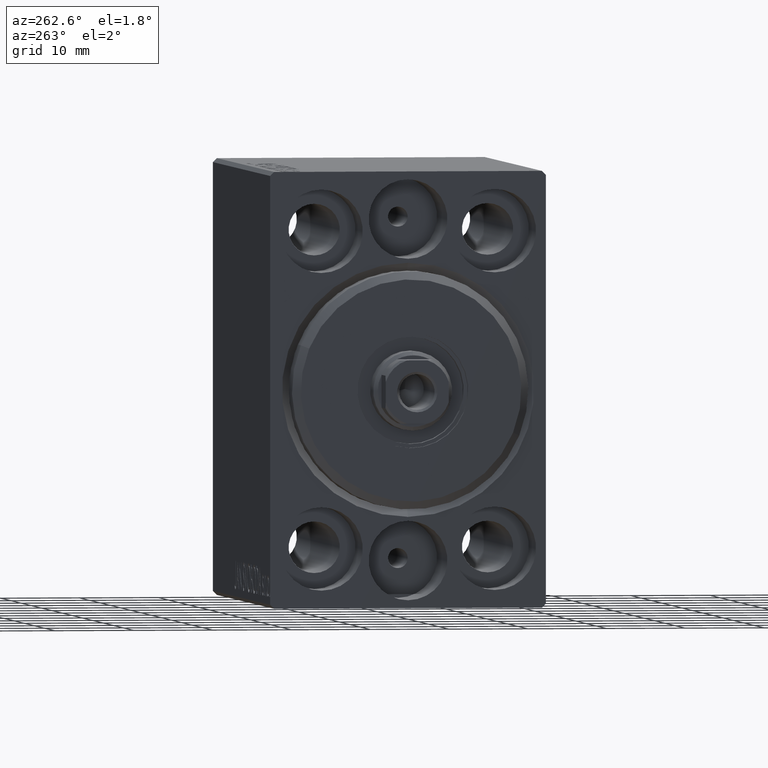
[diagram: clean part render]
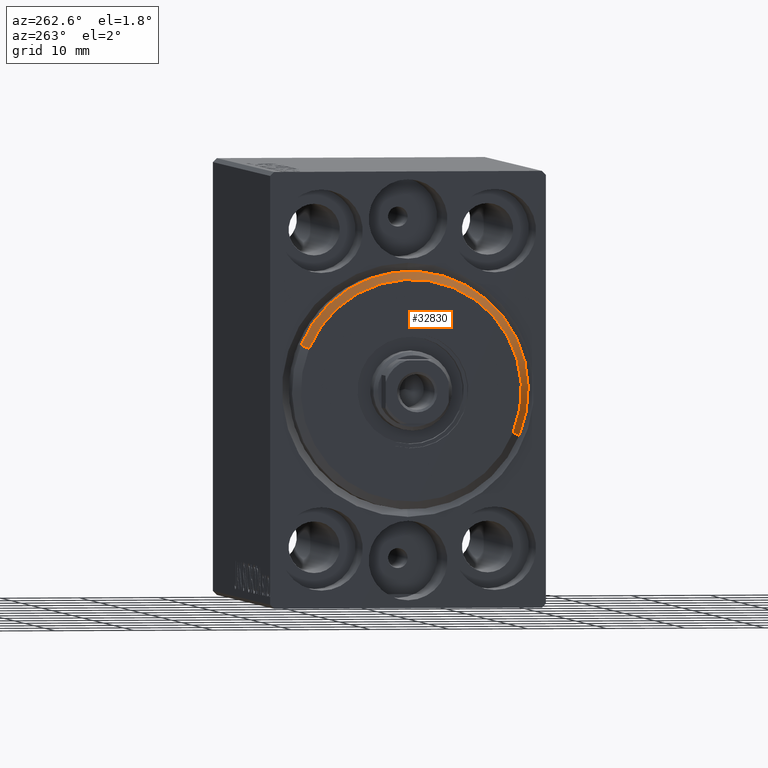
[diagram: same view with one face highlighted and labeled with its STEP entity id]
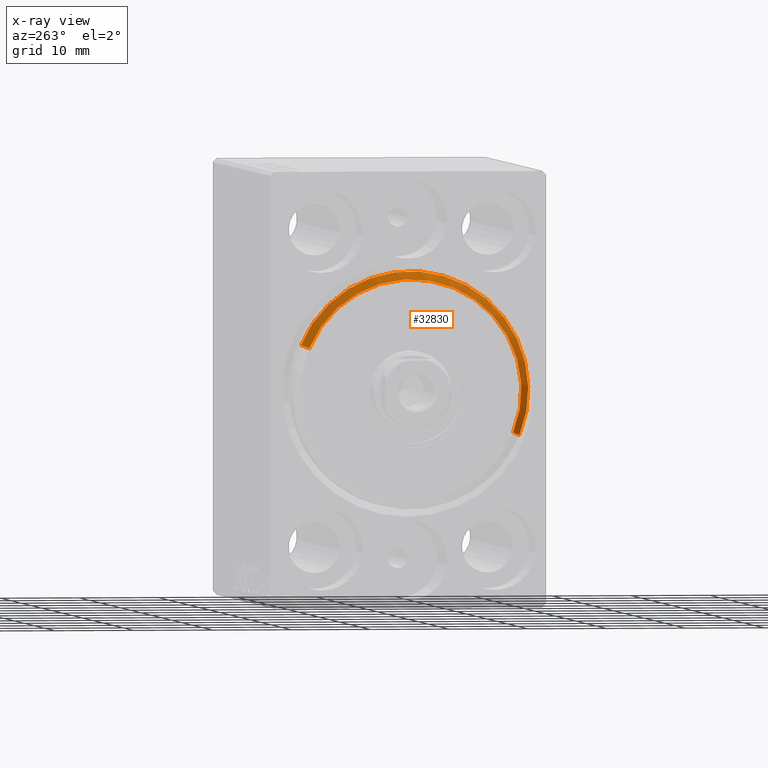
[diagram: x-ray of the same camera — body ghosted, the highlighted face saturated]
A machine part, auxiliary view. The second image highlights one B-rep face of the part: STEP entity #32830.
The next image is the same camera in x-ray: the body ghosted, the highlighted face saturated — about 0% of this face is hidden behind the body in this view.
In plain terms, the highlighted conical surface has half-angle 45 deg.
Its self-contained STEP definition (entity closure, byte-faithful):
#1806 = ORIENTED_EDGE ( 'NONE', *, *, #41559, .F. ) ;
#1813 = CARTESIAN_POINT ( 'NONE',  ( 3.000000000000000000, 0.000000000000000000, 13.99999999999999645 ) ) ;
#2904 = VERTEX_POINT ( 'NONE', #18458 ) ;
#6185 = DIRECTION ( 'NONE',  ( 0.000000000000000000, 0.000000000000000000, -1.000000000000000000 ) ) ;
#6819 = AXIS2_PLACEMENT_3D ( 'NONE', #21732, #31705, #14856 ) ;
#7983 = FACE_OUTER_BOUND ( 'NONE', #37003, .T. ) ;
#8127 = EDGE_CURVE ( 'NONE', #29168, #2904, #29951, .T. ) ;
#8250 = DIRECTION ( 'NONE',  ( -0.7071067811865482389, 0.000000000000000000, 0.7071067811865469066 ) ) ;
#10190 = ORIENTED_EDGE ( 'NONE', *, *, #43844, .F. ) ;
#11280 = CIRCLE ( 'NONE', #36048, 15.00000000000000000 ) ;
#14856 = DIRECTION ( 'NONE',  ( 0.000000000000000000, 0.000000000000000000, 1.000000000000000000 ) ) ;
#15393 = ORIENTED_EDGE ( 'NONE', *, *, #8127, .F. ) ;
#15450 = ORIENTED_EDGE ( 'NONE', *, *, #31741, .T. ) ;
#16641 = DIRECTION ( 'NONE',  ( -0.7071067811865482389, 8.659560562354926695E-17, -0.7071067811865469066 ) ) ;
#18386 = CARTESIAN_POINT ( 'NONE',  ( 1.999999999999995781, 0.000000000000000000, 0.000000000000000000 ) ) ;
#18458 = CARTESIAN_POINT ( 'NONE',  ( 1.999999999999995781, 1.836970198721029589E-15, -15.00000000000000000 ) ) ;
#19042 = CIRCLE ( 'NONE', #22597, 13.99999999999999645 ) ;
#19977 = CARTESIAN_POINT ( 'NONE',  ( 3.000000000000000000, 1.714505518806294244E-15, -13.99999999999999645 ) ) ;
#21463 = CARTESIAN_POINT ( 'NONE',  ( 1.999999999999995781, 0.000000000000000000, 15.00000000000000000 ) ) ;
#21732 = CARTESIAN_POINT ( 'NONE',  ( 3.000000000000000000, 0.000000000000000000, 0.000000000000000000 ) ) ;
#22597 = AXIS2_PLACEMENT_3D ( 'NONE', #33996, #36443, #37316 ) ;
#23165 = VECTOR ( 'NONE', #8250, 999.9999999999998863 ) ;
#25104 = LINE ( 'NONE', #1813, #23165 ) ;
#27471 = CARTESIAN_POINT ( 'NONE',  ( 3.000000000000000000, 0.000000000000000000, 13.99999999999999645 ) ) ;
#28021 = VECTOR ( 'NONE', #16641, 999.9999999999998863 ) ;
#29168 = VERTEX_POINT ( 'NONE', #38188 ) ;
#29951 = LINE ( 'NONE', #19977, #28021 ) ;
#31705 = DIRECTION ( 'NONE',  ( -1.000000000000000000, 0.000000000000000000, 0.000000000000000000 ) ) ;
#31741 = EDGE_CURVE ( 'NONE', #32933, #33746, #25104, .T. ) ;
#32830 = ADVANCED_FACE ( 'NONE', ( #7983 ), #37242, .T. ) ;
#32933 = VERTEX_POINT ( 'NONE', #27471 ) ;
#33746 = VERTEX_POINT ( 'NONE', #21463 ) ;
#33996 = CARTESIAN_POINT ( 'NONE',  ( 3.000000000000000000, 0.000000000000000000, 0.000000000000000000 ) ) ;
#36048 = AXIS2_PLACEMENT_3D ( 'NONE', #18386, #43386, #6185 ) ;
#36443 = DIRECTION ( 'NONE',  ( 1.000000000000000000, -0.000000000000000000, 0.000000000000000000 ) ) ;
#37003 = EDGE_LOOP ( 'NONE', ( #15393, #1806, #15450, #10190 ) ) ;
#37242 = CONICAL_SURFACE ( 'NONE', #6819, 13.99999999999999645, 0.7853981633974473908 ) ;
#37316 = DIRECTION ( 'NONE',  ( 0.000000000000000000, 0.000000000000000000, -1.000000000000000000 ) ) ;
#38188 = CARTESIAN_POINT ( 'NONE',  ( 3.000000000000000000, 1.775737858763662015E-15, -13.99999999999999645 ) ) ;
#41559 = EDGE_CURVE ( 'NONE', #32933, #29168, #19042, .T. ) ;
#43386 = DIRECTION ( 'NONE',  ( -1.000000000000000000, 0.000000000000000000, 0.000000000000000000 ) ) ;
#43844 = EDGE_CURVE ( 'NONE', #2904, #33746, #11280, .T. ) ;